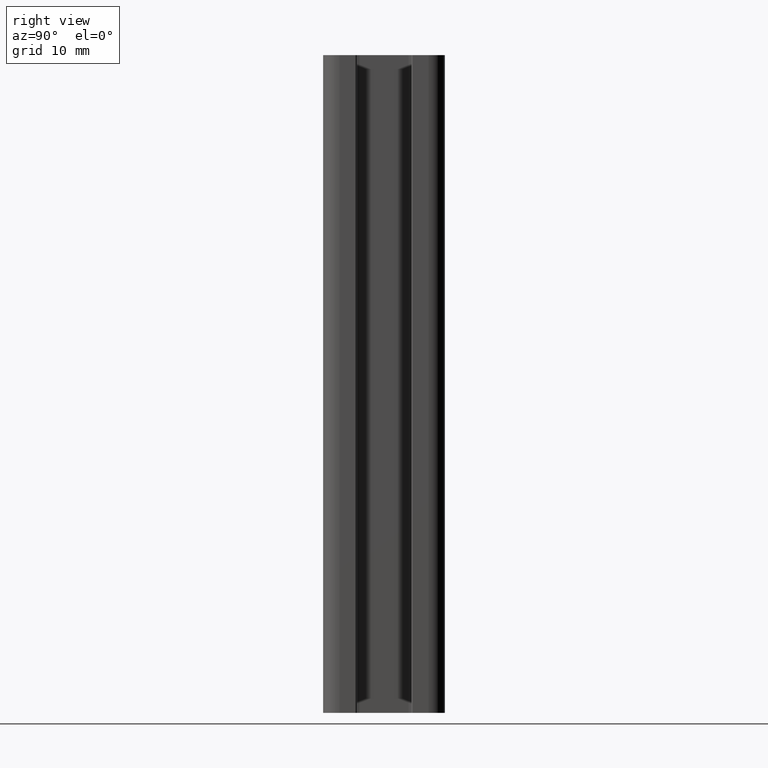
[diagram: clean part render]
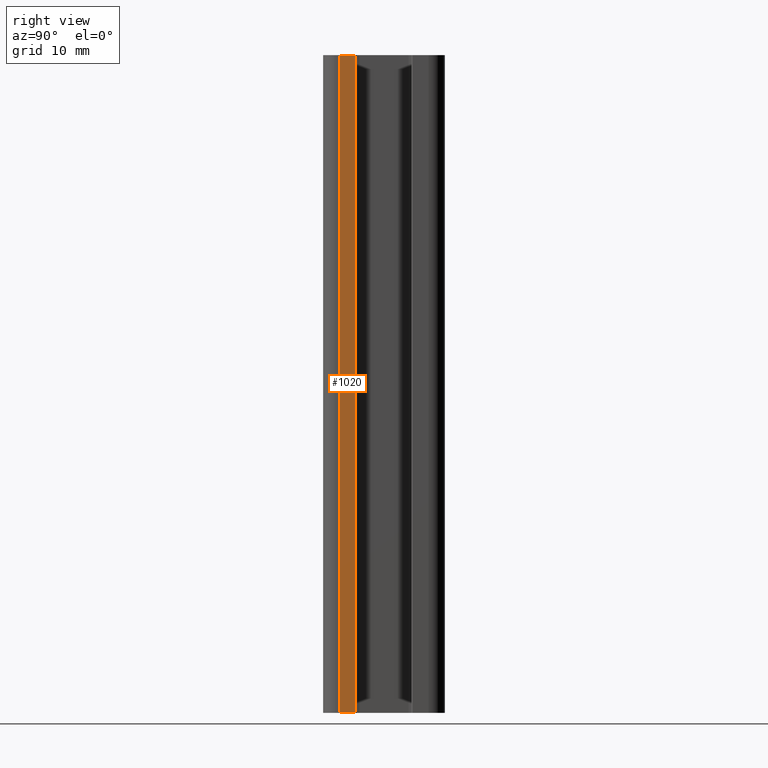
[diagram: same view with one face highlighted and labeled with its STEP entity id]
A machine part, right view. The second image highlights one B-rep face of the part: STEP entity #1020.
In plain terms, the highlighted planar face has unit normal (1, 0, 0).
Its self-contained STEP definition (entity closure, byte-faithful):
#40=PLANE('',#1114);
#88=FACE_OUTER_BOUND('',#140,.T.);
#140=EDGE_LOOP('',(#873,#874,#875,#876));
#227=LINE('',#1651,#333);
#241=LINE('',#1693,#347);
#246=LINE('',#1705,#352);
#247=LINE('',#1706,#353);
#333=VECTOR('',#1341,100.);
#347=VECTOR('',#1383,2.35000000000047);
#352=VECTOR('',#1394,100.);
#353=VECTOR('',#1395,2.35000000000047);
#481=VERTEX_POINT('',#1648);
#482=VERTEX_POINT('',#1650);
#496=VERTEX_POINT('',#1691);
#500=VERTEX_POINT('',#1704);
#614=EDGE_CURVE('',#481,#482,#227,.T.);
#636=EDGE_CURVE('',#481,#496,#241,.T.);
#642=EDGE_CURVE('',#500,#496,#246,.T.);
#643=EDGE_CURVE('',#482,#500,#247,.T.);
#873=ORIENTED_EDGE('',*,*,#614,.F.);
#874=ORIENTED_EDGE('',*,*,#636,.T.);
#875=ORIENTED_EDGE('',*,*,#642,.F.);
#876=ORIENTED_EDGE('',*,*,#643,.F.);
#1020=ADVANCED_FACE('',(#88),#40,.T.);
#1114=AXIS2_PLACEMENT_3D('',#1703,#1392,#1393);
#1341=DIRECTION('',(0.,0.,-1.));
#1383=DIRECTION('',(0.,-1.,0.));
#1392=DIRECTION('center_axis',(1.,0.,0.));
#1393=DIRECTION('ref_axis',(0.,1.,0.));
#1394=DIRECTION('',(0.,0.,1.));
#1395=DIRECTION('',(0.,-1.,0.));
#1648=CARTESIAN_POINT('',(22.5,-4.39999999999953,100.));
#1650=CARTESIAN_POINT('',(22.5,-4.39999999999953,0.));
#1651=CARTESIAN_POINT('',(22.5,-4.39999999999953,0.));
#1691=CARTESIAN_POINT('',(22.5,-6.75,100.));
#1693=CARTESIAN_POINT('',(22.5,-3.375,100.));
#1703=CARTESIAN_POINT('Origin',(22.5,-6.75,0.));
#1704=CARTESIAN_POINT('',(22.5,-6.75,0.));
#1705=CARTESIAN_POINT('',(22.5,-6.75,0.));
#1706=CARTESIAN_POINT('',(22.5,-3.375,0.));